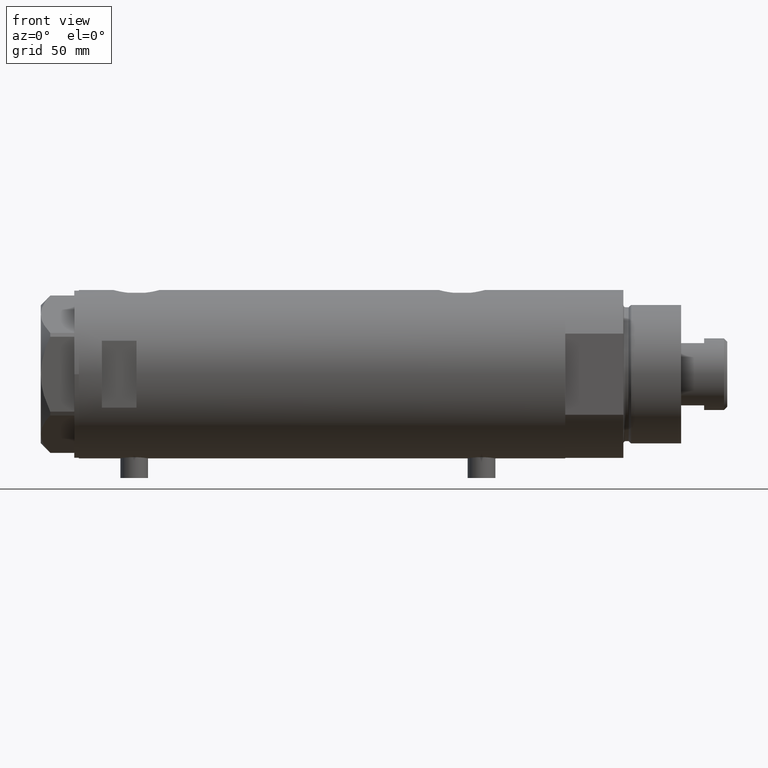
[diagram: clean part render]
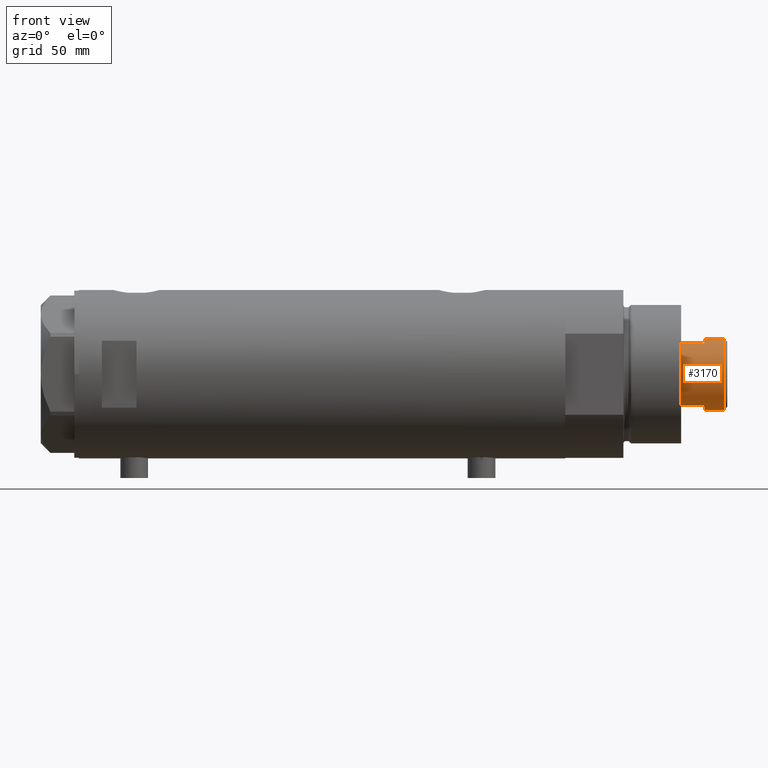
[diagram: same view with one face highlighted and labeled with its STEP entity id]
A machine part, front view. The second image highlights one B-rep face of the part: STEP entity #3170.
In plain terms, the highlighted cylindrical surface (edge-blend (fillet) strip) has radius 15.5 mm, axis along (-1, -0, 0).
Its self-contained STEP definition (entity closure, byte-faithful):
#25 = CARTESIAN_POINT ( 'NONE',  ( 0.000000000000000000, 0.000000000000000000, 245.0000000000000000 ) ) ;
#63 = DIRECTION ( 'NONE',  ( 1.000000000000000000, 0.000000000000000000, 0.000000000000000000 ) ) ;
#149 = CARTESIAN_POINT ( 'NONE',  ( -15.50000000000000178, 0.000000000000000000, 245.0000000000000000 ) ) ;
#167 = VERTEX_POINT ( 'NONE', #3204 ) ;
#181 = CARTESIAN_POINT ( 'NONE',  ( 13.48630416385453046, -7.639999999999995239, 245.0000000000000000 ) ) ;
#214 = DIRECTION ( 'NONE',  ( -0.000000000000000000, -0.000000000000000000, -1.000000000000000000 ) ) ;
#304 = AXIS2_PLACEMENT_3D ( 'NONE', #751, #2140, #3515 ) ;
#362 = VERTEX_POINT ( 'NONE', #1088 ) ;
#379 = DIRECTION ( 'NONE',  ( -0.000000000000000000, -0.000000000000000000, -1.000000000000000000 ) ) ;
#471 = ORIENTED_EDGE ( 'NONE', *, *, #2976, .T. ) ;
#539 = EDGE_LOOP ( 'NONE', ( #2490, #965, #994, #1397, #471, #3871, #3955, #3973 ) ) ;
#607 = DIRECTION ( 'NONE',  ( 1.000000000000000000, 0.000000000000000000, 0.000000000000000000 ) ) ;
#620 = DIRECTION ( 'NONE',  ( 0.000000000000000000, 0.000000000000000000, -1.000000000000000000 ) ) ;
#751 = CARTESIAN_POINT ( 'NONE',  ( 0.000000000000000000, 0.000000000000000000, 245.0000000000000000 ) ) ;
#807 = DIRECTION ( 'NONE',  ( 0.000000000000000000, 0.000000000000000000, 1.000000000000000000 ) ) ;
#856 = CARTESIAN_POINT ( 'NONE',  ( 15.49999999999999822, 1.898202538678397163E-15, 245.0000000000000000 ) ) ;
#896 = CIRCLE ( 'NONE', #3420, 15.50000000000000000 ) ;
#965 = ORIENTED_EDGE ( 'NONE', *, *, #3654, .T. ) ;
#994 = ORIENTED_EDGE ( 'NONE', *, *, #2643, .T. ) ;
#1088 = CARTESIAN_POINT ( 'NONE',  ( 15.50000000000000178, 1.898202538678397557E-15, 245.0000000000000000 ) ) ;
#1109 = DIRECTION ( 'NONE',  ( 0.000000000000000000, 0.000000000000000000, 1.000000000000000000 ) ) ;
#1311 = VERTEX_POINT ( 'NONE', #4458 ) ;
#1315 = CIRCLE ( 'NONE', #2394, 15.49999999999999822 ) ;
#1397 = ORIENTED_EDGE ( 'NONE', *, *, #2343, .T. ) ;
#1477 = VECTOR ( 'NONE', #2239, 1000.000000000000000 ) ;
#1503 = EDGE_CURVE ( 'NONE', #4153, #4224, #1315, .T. ) ;
#1593 = DIRECTION ( 'NONE',  ( -1.000000000000000000, 0.000000000000000000, 0.000000000000000000 ) ) ;
#1649 = CARTESIAN_POINT ( 'NONE',  ( 0.000000000000000000, 0.000000000000000000, 253.5999999999999375 ) ) ;
#1673 = VECTOR ( 'NONE', #2856, 1000.000000000000000 ) ;
#1793 = CARTESIAN_POINT ( 'NONE',  ( -13.48630416385452335, -7.640000000000089386, 235.0000000000000000 ) ) ;
#1797 = LINE ( 'NONE', #4206, #3354 ) ;
#1807 = EDGE_CURVE ( 'NONE', #2758, #4224, #3199, .T. ) ;
#1821 = AXIS2_PLACEMENT_3D ( 'NONE', #3376, #214, #1593 ) ;
#1927 = EDGE_CURVE ( 'NONE', #2758, #362, #1967, .T. ) ;
#1967 = CIRCLE ( 'NONE', #304, 15.50000000000000000 ) ;
#2140 = DIRECTION ( 'NONE',  ( 0.000000000000000000, 0.000000000000000000, 1.000000000000000000 ) ) ;
#2239 = DIRECTION ( 'NONE',  ( -0.000000000000000000, -0.000000000000000000, -1.000000000000000000 ) ) ;
#2343 = EDGE_CURVE ( 'NONE', #4285, #4015, #896, .T. ) ;
#2394 = AXIS2_PLACEMENT_3D ( 'NONE', #4003, #807, #607 ) ;
#2479 = LINE ( 'NONE', #3457, #3646 ) ;
#2490 = ORIENTED_EDGE ( 'NONE', *, *, #4385, .F. ) ;
#2572 = LINE ( 'NONE', #856, #1477 ) ;
#2643 = EDGE_CURVE ( 'NONE', #1311, #4285, #1797, .T. ) ;
#2758 = VERTEX_POINT ( 'NONE', #181 ) ;
#2766 = DIRECTION ( 'NONE',  ( -0.000000000000000000, -0.000000000000000000, -1.000000000000000000 ) ) ;
#2856 = DIRECTION ( 'NONE',  ( -0.000000000000000000, -0.000000000000000000, -1.000000000000000000 ) ) ;
#2976 = EDGE_CURVE ( 'NONE', #4015, #4153, #2479, .T. ) ;
#3004 = CYLINDRICAL_SURFACE ( 'NONE', #1821, 15.49999999999999822 ) ;
#3066 = AXIS2_PLACEMENT_3D ( 'NONE', #1649, #620, #4396 ) ;
#3160 = CARTESIAN_POINT ( 'NONE',  ( 13.48630416385452868, -7.640000000000082281, 235.0000000000000000 ) ) ;
#3170 = ADVANCED_FACE ( 'NONE', ( #3663 ), #3004, .T. ) ;
#3199 = LINE ( 'NONE', #3841, #1673 ) ;
#3204 = CARTESIAN_POINT ( 'NONE',  ( 15.49999999999999822, 1.898202538678397163E-15, 253.5999999999999375 ) ) ;
#3354 = VECTOR ( 'NONE', #379, 1000.000000000000000 ) ;
#3376 = CARTESIAN_POINT ( 'NONE',  ( 0.000000000000000000, 0.000000000000000000, 245.0000000000000000 ) ) ;
#3420 = AXIS2_PLACEMENT_3D ( 'NONE', #25, #1109, #63 ) ;
#3457 = CARTESIAN_POINT ( 'NONE',  ( -13.48630416385452691, -7.640000000000001457, 245.0000000000000000 ) ) ;
#3515 = DIRECTION ( 'NONE',  ( 1.000000000000000000, 0.000000000000000000, 0.000000000000000000 ) ) ;
#3646 = VECTOR ( 'NONE', #2766, 1000.000000000000000 ) ;
#3654 = EDGE_CURVE ( 'NONE', #167, #1311, #3787, .T. ) ;
#3663 = FACE_OUTER_BOUND ( 'NONE', #539, .T. ) ;
#3787 = CIRCLE ( 'NONE', #3066, 15.49999999999999822 ) ;
#3841 = CARTESIAN_POINT ( 'NONE',  ( 13.48630416385453046, -7.639999999999995239, 245.0000000000000000 ) ) ;
#3871 = ORIENTED_EDGE ( 'NONE', *, *, #1503, .T. ) ;
#3955 = ORIENTED_EDGE ( 'NONE', *, *, #1807, .F. ) ;
#3973 = ORIENTED_EDGE ( 'NONE', *, *, #1927, .T. ) ;
#3987 = CARTESIAN_POINT ( 'NONE',  ( -13.48630416385452335, -7.640000000000004121, 245.0000000000000000 ) ) ;
#4003 = CARTESIAN_POINT ( 'NONE',  ( 0.000000000000000000, 0.000000000000000000, 235.0000000000000000 ) ) ;
#4015 = VERTEX_POINT ( 'NONE', #3987 ) ;
#4153 = VERTEX_POINT ( 'NONE', #1793 ) ;
#4206 = CARTESIAN_POINT ( 'NONE',  ( -15.49999999999999822, 0.000000000000000000, 245.0000000000000000 ) ) ;
#4224 = VERTEX_POINT ( 'NONE', #3160 ) ;
#4285 = VERTEX_POINT ( 'NONE', #149 ) ;
#4385 = EDGE_CURVE ( 'NONE', #167, #362, #2572, .T. ) ;
#4396 = DIRECTION ( 'NONE',  ( 1.000000000000000000, 0.000000000000000000, 0.000000000000000000 ) ) ;
#4458 = CARTESIAN_POINT ( 'NONE',  ( -15.49999999999999822, 0.000000000000000000, 253.5999999999999375 ) ) ;